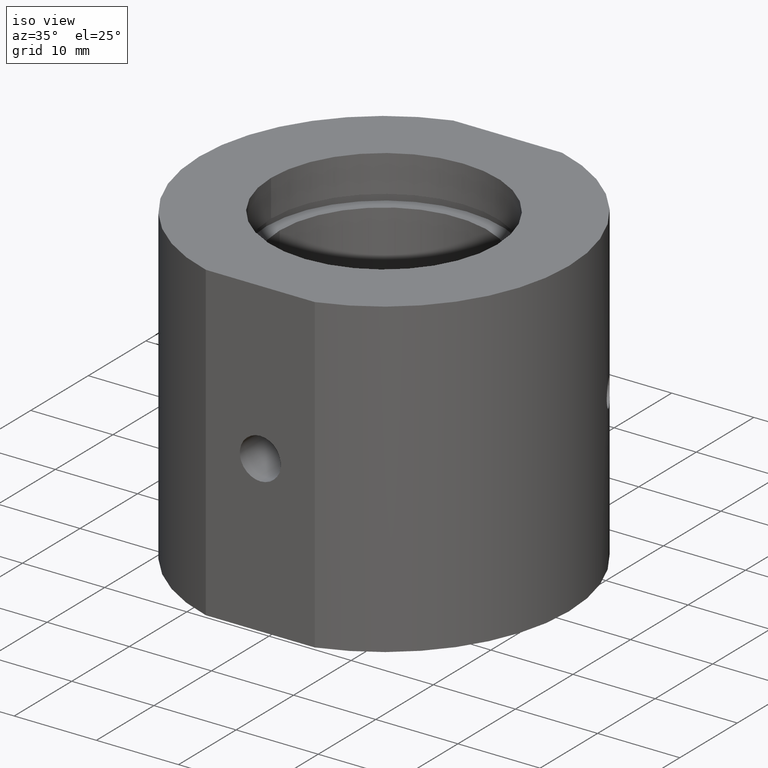
[diagram: clean part render]
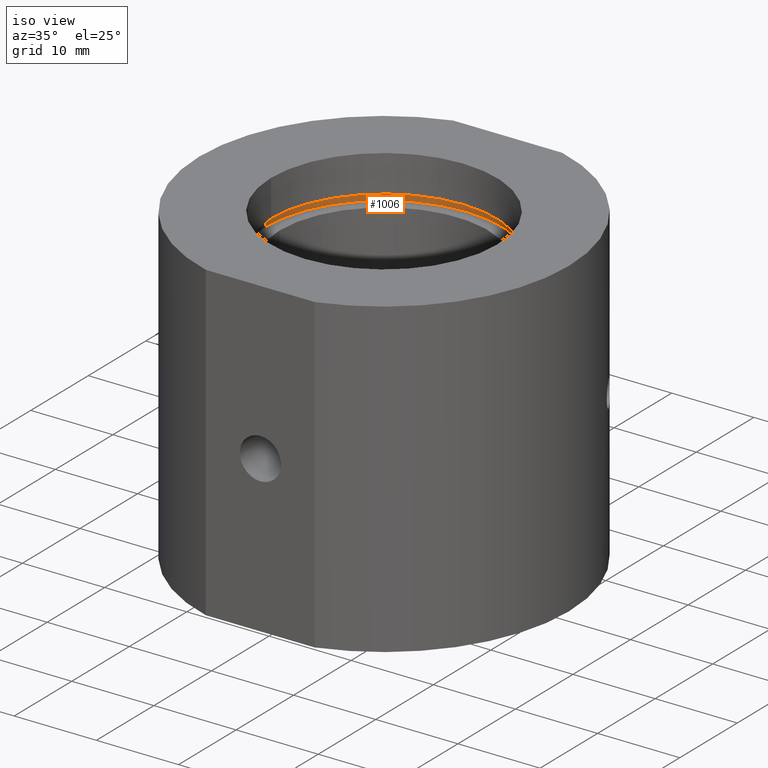
[diagram: same view with one face highlighted and labeled with its STEP entity id]
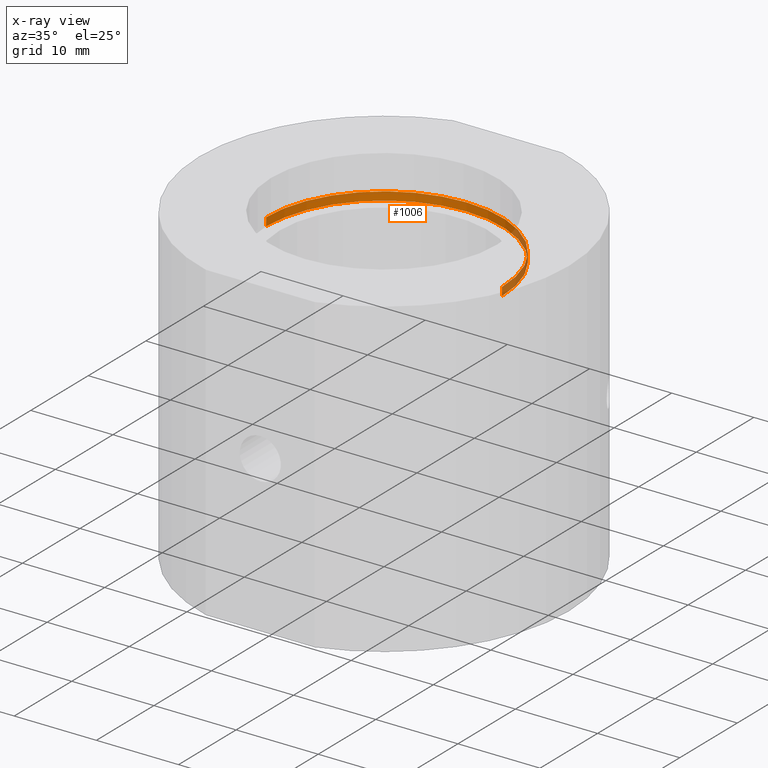
[diagram: x-ray of the same camera — body ghosted, the highlighted face saturated]
A machine part, iso view. The second image highlights one B-rep face of the part: STEP entity #1006.
The next image is the same camera in x-ray: the body ghosted, the highlighted face saturated — about 14% of this face is hidden behind the body in this view.
In plain terms, the highlighted cylindrical surface (partial cylindrical patch) has radius 14.35 mm, axis along (-0, -0, -1).
Its self-contained STEP definition (entity closure, byte-faithful):
#1 = LINE ( 'NONE', #288, #1365 ) ;
#73 = CARTESIAN_POINT ( 'NONE',  ( 5.564680930534238900E-015, 0.0000000000000000000, 13.49999999999999800 ) ) ;
#76 = CARTESIAN_POINT ( 'NONE',  ( 0.0000000000000000000, 0.0000000000000000000, -31.93906810035839800 ) ) ;
#82 = VERTEX_POINT ( 'NONE', #754 ) ;
#109 = ORIENTED_EDGE ( 'NONE', *, *, #586, .T. ) ;
#111 = DIRECTION ( 'NONE',  ( -1.224646799147350500E-016, -0.0000000000000000000, -1.000000000000000000 ) ) ;
#114 = EDGE_CURVE ( 'NONE', #134, #1209, #1, .T. ) ;
#134 = VERTEX_POINT ( 'NONE', #294 ) ;
#166 = CARTESIAN_POINT ( 'NONE',  ( 14.35000000000000700, 1.757368156776452000E-015, 13.49999999999999600 ) ) ;
#257 = EDGE_LOOP ( 'NONE', ( #289, #1066, #109, #889 ) ) ;
#284 = DIRECTION ( 'NONE',  ( -1.224646799147350500E-016, -0.0000000000000000000, -1.000000000000000000 ) ) ;
#288 = CARTESIAN_POINT ( 'NONE',  ( 14.35000000000000100, 1.757368156776452000E-015, -31.93906810035839800 ) ) ;
#289 = ORIENTED_EDGE ( 'NONE', *, *, #114, .F. ) ;
#294 = CARTESIAN_POINT ( 'NONE',  ( 14.35000000000000700, 1.757368156776452000E-015, 14.49999999999999600 ) ) ;
#322 = CARTESIAN_POINT ( 'NONE',  ( -14.34999999999999600, 0.0000000000000000000, 14.50000000000000000 ) ) ;
#334 = DIRECTION ( 'NONE',  ( -1.000000000000000000, 0.0000000000000000000, 1.208866533781746900E-016 ) ) ;
#389 = AXIS2_PLACEMENT_3D ( 'NONE', #1200, #111, #334 ) ;
#442 = EDGE_CURVE ( 'NONE', #82, #1209, #1242, .T. ) ;
#578 = VECTOR ( 'NONE', #1201, 1000.000000000000000 ) ;
#586 = EDGE_CURVE ( 'NONE', #1354, #82, #1158, .T. ) ;
#657 = CARTESIAN_POINT ( 'NONE',  ( -14.35000000000000100, 0.0000000000000000000, -31.93906810035839800 ) ) ;
#754 = CARTESIAN_POINT ( 'NONE',  ( -14.34999999999999600, 0.0000000000000000000, 13.50000000000000000 ) ) ;
#839 = DIRECTION ( 'NONE',  ( -1.000000000000000000, 0.0000000000000000000, 1.208866533781746900E-016 ) ) ;
#841 = DIRECTION ( 'NONE',  ( -1.000000000000000000, 0.0000000000000000000, 0.0000000000000000000 ) ) ;
#889 = ORIENTED_EDGE ( 'NONE', *, *, #442, .T. ) ;
#956 = DIRECTION ( 'NONE',  ( -1.224646799147350500E-016, -0.0000000000000000000, -1.000000000000000000 ) ) ;
#1006 = ADVANCED_FACE ( 'NONE', ( #1416 ), #1110, .F. ) ;
#1065 = AXIS2_PLACEMENT_3D ( 'NONE', #73, #1279, #839 ) ;
#1066 = ORIENTED_EDGE ( 'NONE', *, *, #1407, .F. ) ;
#1110 = CYLINDRICAL_SURFACE ( 'NONE', #1175, 14.35000000000000100 ) ;
#1158 = LINE ( 'NONE', #657, #578 ) ;
#1175 = AXIS2_PLACEMENT_3D ( 'NONE', #76, #956, #841 ) ;
#1200 = CARTESIAN_POINT ( 'NONE',  ( 5.687145610448973200E-015, 0.0000000000000000000, 14.49999999999999800 ) ) ;
#1201 = DIRECTION ( 'NONE',  ( -1.224646799147350500E-016, -0.0000000000000000000, -1.000000000000000000 ) ) ;
#1209 = VERTEX_POINT ( 'NONE', #166 ) ;
#1242 = CIRCLE ( 'NONE', #1065, 14.35000000000000100 ) ;
#1279 = DIRECTION ( 'NONE',  ( -1.224646799147350500E-016, -0.0000000000000000000, -1.000000000000000000 ) ) ;
#1354 = VERTEX_POINT ( 'NONE', #322 ) ;
#1365 = VECTOR ( 'NONE', #284, 1000.000000000000000 ) ;
#1386 = CIRCLE ( 'NONE', #389, 14.35000000000000100 ) ;
#1407 = EDGE_CURVE ( 'NONE', #1354, #134, #1386, .T. ) ;
#1416 = FACE_OUTER_BOUND ( 'NONE', #257, .T. ) ;